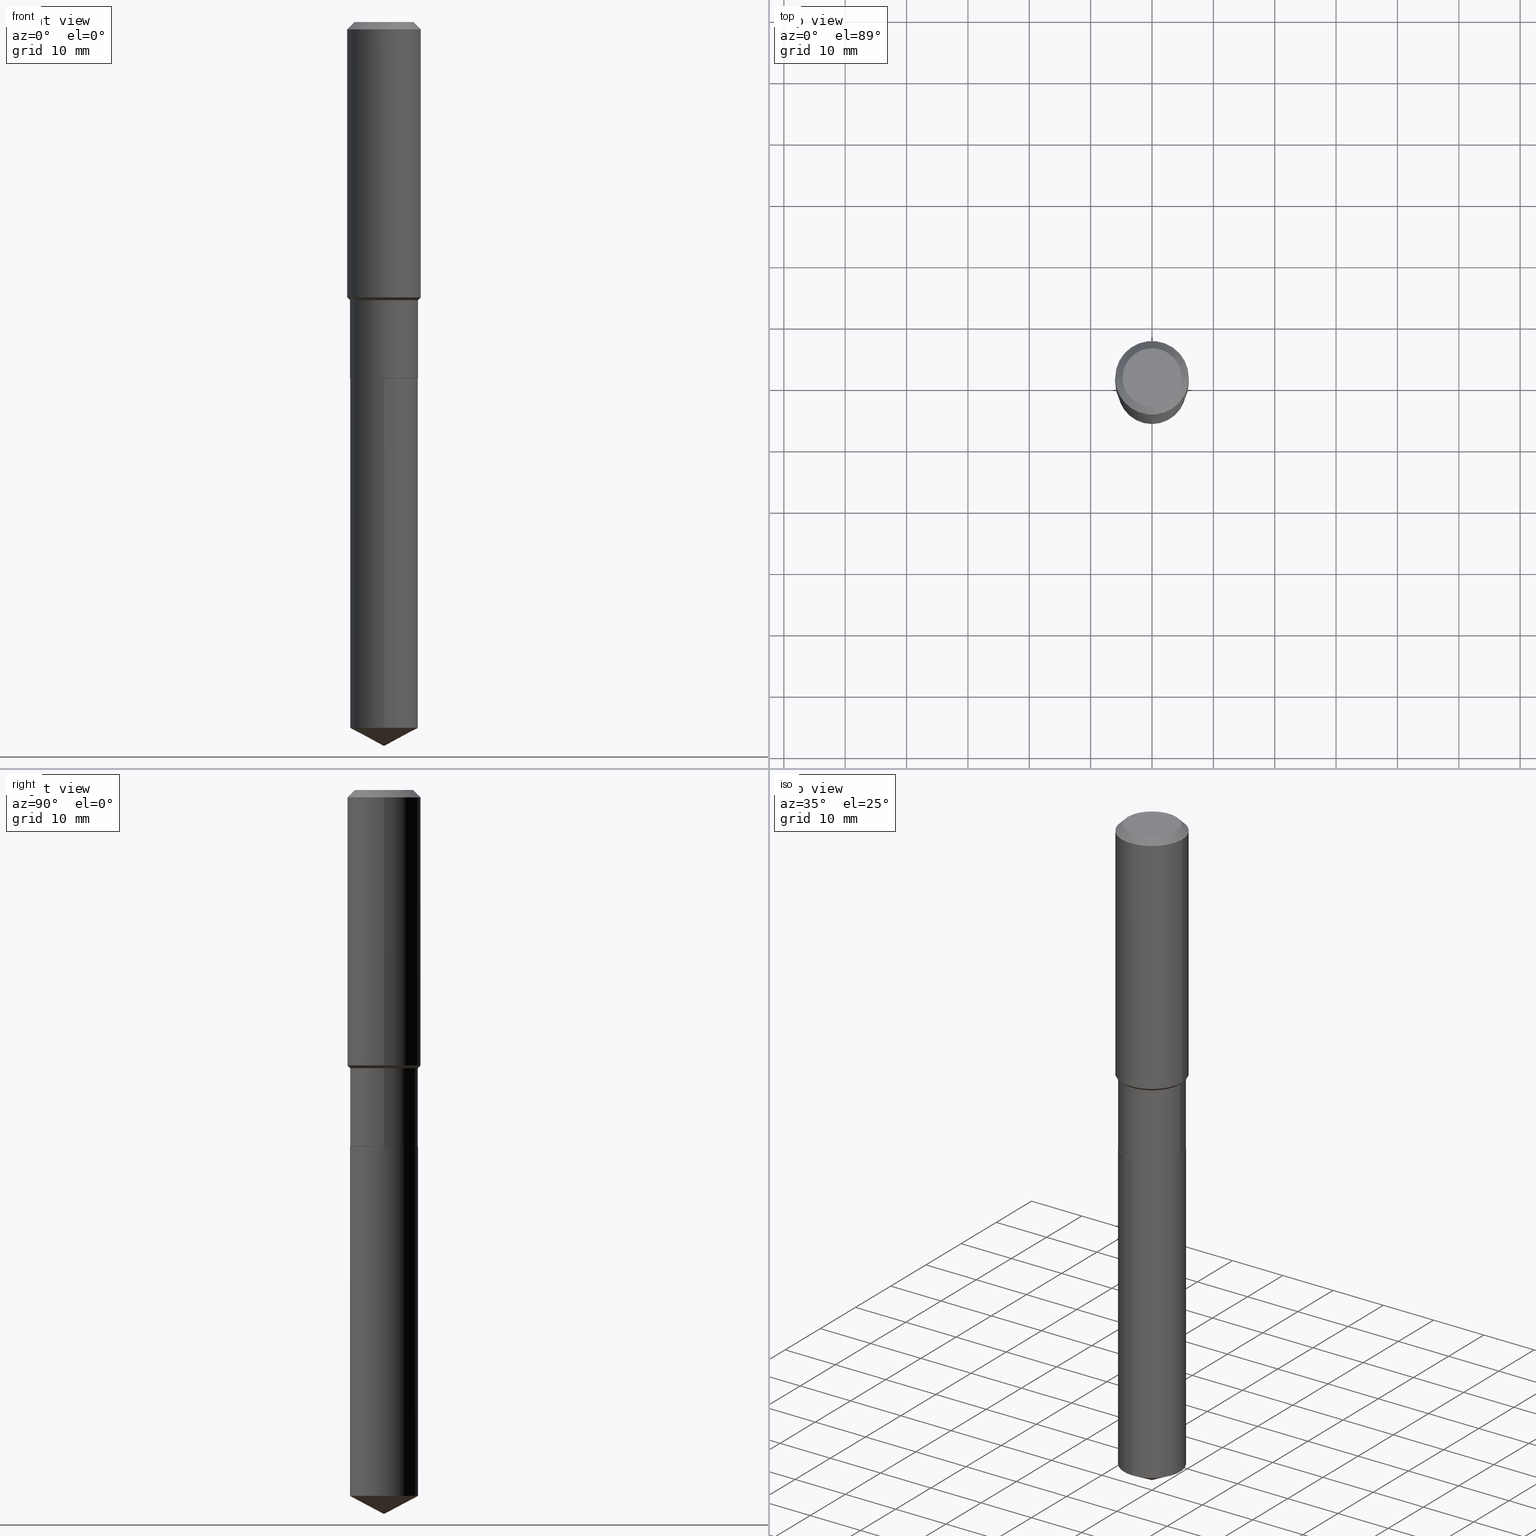
[diagram: canonical four-view strip — front | top / right | iso, engineering-drawing reading convention]
A machine part, canonical four-view strip (front | top / right | iso — engineering-drawing reading convention). The complete STEP part file that produces these views, byte-faithful:
ISO-10303-21;
HEADER;
FILE_DESCRIPTION (( 'STEP AP203' ),
    '1' );
FILE_NAME ('65081.STEP',
    '2024-04-24T20:31:33',
    ( '' ),
    ( '' ),
    'SwSTEP 2.0',
    'SolidWorks 2023',
    '' );
FILE_SCHEMA (( 'CONFIG_CONTROL_DESIGN' ));
ENDSEC;

DATA;
#1 = ORIENTED_EDGE ( 'NONE', *, *, #315, .F. ) ;
#2 = AXIS2_PLACEMENT_3D ( 'NONE', #12, #395, #17 ) ;
#3 = EDGE_CURVE ( 'NONE', #253, #256, #459, .T. ) ;
#4 = APPLICATION_PROTOCOL_DEFINITION ( 'international standard', 'config_control_design', 1994, #344 ) ;
#5 = ORIENTED_EDGE ( 'NONE', *, *, #213, .T. ) ;
#6 = DATE_AND_TIME ( #38, #136 ) ;
#7 = ORIENTED_EDGE ( 'NONE', *, *, #105, .T. ) ;
#8 = DATE_AND_TIME ( #347, #162 ) ;
#9 = DIRECTION ( 'NONE',  ( -2.445468806185136597E-29, 3.491481338843145583E-15, 1.000000000000000000 ) ) ;
#10 = FACE_OUTER_BOUND ( 'NONE', #139, .T. ) ;
#11 = DIRECTION ( 'NONE',  ( 1.000000000000000000, -6.982962677686264344E-15, 0.000000000000000000 ) ) ;
#12 = CARTESIAN_POINT ( 'NONE',  ( 5.593765347267879611E-29, -7.986414414469808493E-15, -2.287399999999998990 ) ) ;
#13 = EDGE_CURVE ( 'NONE', #88, #222, #233, .T. ) ;
#14 = CARTESIAN_POINT ( 'NONE',  ( 1.107686542487297643E-28, -1.581465108594102164E-14, -4.529521489181966842 ) ) ;
#15 = DIRECTION ( 'NONE',  ( 6.982962677686265922E-15, 1.000000000000000000, -3.491441792624415852E-15 ) ) ;
#16 = UNCERTAINTY_MEASURE_WITH_UNIT (LENGTH_MEASURE( 1.000000000000000082E-05 ), #306, 'distance_accuracy_value', 'NONE');
#17 = DIRECTION ( 'NONE',  ( -6.982962677686265922E-15, -1.000000000000000000, 3.750821043932626512E-15 ) ) ;
#18 = EDGE_CURVE ( 'NONE', #366, #88, #149, .T. ) ;
#19 = CARTESIAN_POINT ( 'NONE',  ( 1.155239464041865506E-30, -1.649375784469511859E-16, -0.04724000000000028177 ) ) ;
#20 = MANIFOLD_SOLID_BREP ( 'Body-Move/Copy2[2]', #77 ) ;
#21 = APPROVAL_DATE_TIME ( #285, #66 ) ;
#22 = CIRCLE ( 'NONE', #290, 0.2179999999999999993 ) ;
#23 = DIRECTION ( 'NONE',  ( 1.000000000000000000, -6.982962677686270655E-15, 0.000000000000000000 ) ) ;
#24 = ORIENTED_EDGE ( 'NONE', *, *, #13, .F. ) ;
#25 = COORDINATED_UNIVERSAL_TIME_OFFSET ( 5, 0, .BEHIND. ) ;
#26 = CARTESIAN_POINT ( 'NONE',  ( -0.2184999999999999443, -5.555596406047996630E-15, -1.784799999999999498 ) ) ;
#27 = ORIENTED_EDGE ( 'NONE', *, *, #385, .T. ) ;
#28 = DIRECTION ( 'NONE',  ( -2.445468806185136877E-29, 3.491481338843145188E-15, 1.000000000000000000 ) ) ;
#29 = ORIENTED_EDGE ( 'NONE', *, *, #385, .F. ) ;
#30 = CIRCLE ( 'NONE', #201, 0.2184999999999999443 ) ;
#31 = LOCAL_TIME ( 16, 31, 33.00000000000000000, #25 ) ;
#32 = DIRECTION ( 'NONE',  ( -2.445468806185136597E-29, 3.491481338843145583E-15, 1.000000000000000000 ) ) ;
#33 = ORIENTED_EDGE ( 'NONE', *, *, #322, .F. ) ;
#34 = ORIENTED_EDGE ( 'NONE', *, *, #94, .T. ) ;
#35 = DIRECTION ( 'NONE',  ( -1.000000000000000000, 6.982962677686266711E-15, 0.000000000000000000 ) ) ;
#36 = EDGE_LOOP ( 'NONE', ( #146, #67, #190, #40 ) ) ;
#37 = VECTOR ( 'NONE', #126, 39.37007874015748143 ) ;
#38 = CALENDAR_DATE ( 2024, 24, 4 ) ;
#39 =( GEOMETRIC_REPRESENTATION_CONTEXT ( 3 ) GLOBAL_UNCERTAINTY_ASSIGNED_CONTEXT ( ( #16 ) ) GLOBAL_UNIT_ASSIGNED_CONTEXT ( ( #306, #236, #386 ) ) REPRESENTATION_CONTEXT ( 'NONE', 'WORKASPACE' ) );
#40 = ORIENTED_EDGE ( 'NONE', *, *, #269, .F. ) ;
#41 = EDGE_CURVE ( 'NONE', #72, #297, #30, .T. ) ;
#42 = COORDINATED_UNIVERSAL_TIME_OFFSET ( 5, 0, .BEHIND. ) ;
#43 = ORIENTED_EDGE ( 'NONE', *, *, #18, .F. ) ;
#44 = PERSON_AND_ORGANIZATION ( #204, #336 ) ;
#45 = DIRECTION ( 'NONE',  ( -2.445468806185136877E-29, 3.491481338843145188E-15, 1.000000000000000000 ) ) ;
#46 = CIRCLE ( 'NONE', #86, 0.2184999999999999443 ) ;
#47 = CYLINDRICAL_SURFACE ( 'NONE', #160, 0.2184999999999999720 ) ;
#48 = VECTOR ( 'NONE', #145, 39.37007874015748143 ) ;
#49 = DIRECTION ( 'NONE',  ( -6.982962677686265922E-15, -1.000000000000000000, 2.500547362621751271E-15 ) ) ;
#50 = ORIENTED_EDGE ( 'NONE', *, *, #207, .F. ) ;
#51 = EDGE_CURVE ( 'NONE', #256, #297, #270, .T. ) ;
#52 = CARTESIAN_POINT ( 'NONE',  ( 1.136091639079615230E-28, -1.622037205203669386E-14, -4.645699999999999719 ) ) ;
#53 = CARTESIAN_POINT ( 'NONE',  ( -1.525777345074393133E-15, -0.2185000000000079934, -2.287399999999998546 ) ) ;
#54 = LOCAL_TIME ( 16, 31, 33.00000000000000000, #283 ) ;
#55 = DIRECTION ( 'NONE',  ( 6.273719981627763710E-15, 0.8829475928589293199, 0.4694715627858859208 ) ) ;
#56 = LINE ( 'NONE', #243, #467 ) ;
#57 = PERSON_AND_ORGANIZATION_ROLE ( 'creator' ) ;
#58 = DIRECTION ( 'NONE',  ( -1.000000000000000000, 6.982962677686265922E-15, -4.876176775795935793E-29 ) ) ;
#59 = EDGE_LOOP ( 'NONE', ( #342, #104, #34, #299 ) ) ;
#60 = AXIS2_PLACEMENT_3D ( 'NONE', #324, #403, #438 ) ;
#61 = AXIS2_PLACEMENT_3D ( 'NONE', #446, #328, #252 ) ;
#62 = FACE_OUTER_BOUND ( 'NONE', #242, .T. ) ;
#63 = EDGE_LOOP ( 'NONE', ( #99, #27, #320, #141 ) ) ;
#64 = APPROVAL ( #350, 'UNSPECIFIED' ) ;
#65 = FACE_OUTER_BOUND ( 'NONE', #449, .T. ) ;
#66 = APPROVAL ( #251, 'UNSPECIFIED' ) ;
#67 = ORIENTED_EDGE ( 'NONE', *, *, #51, .T. ) ;
#68 = CARTESIAN_POINT ( 'NONE',  ( 5.593765347267879611E-29, -7.986414414469808493E-15, -2.287399999999998990 ) ) ;
#69 = VERTEX_POINT ( 'NONE', #382 ) ;
#70 = CIRCLE ( 'NONE', #353, 0.2362000000000002153 ) ;
#71 = CARTESIAN_POINT ( 'NONE',  ( 5.593765347267879611E-29, -7.986414414469808493E-15, -2.287399999999998990 ) ) ;
#72 = VERTEX_POINT ( 'NONE', #85 ) ;
#73 = CARTESIAN_POINT ( 'NONE',  ( -0.2361999999999999933, -1.489065184292978124E-15, -0.04724000000000028177 ) ) ;
#74 = EDGE_LOOP ( 'NONE', ( #184, #84, #218, #225 ) ) ;
#75 = PERSON_AND_ORGANIZATION ( #204, #336 ) ;
#76 = CARTESIAN_POINT ( 'NONE',  ( 0.000000000000000000, 0.000000000000000000, 0.000000000000000000 ) ) ;
#77 = CLOSED_SHELL ( 'NONE', ( #164, #129, #245, #171, #282, #111, #81, #89, #477, #349, #393, #388 ) ) ;
#78 = CARTESIAN_POINT ( 'NONE',  ( 0.2361999999999999933, -1.814313362916447440E-15, -0.04724000000000028177 ) ) ;
#79 = CIRCLE ( 'NONE', #227, 0.2361999999999999933 ) ;
#80 = ORIENTED_EDGE ( 'NONE', *, *, #259, .F. ) ;
#81 = ADVANCED_FACE ( 'NONE', ( #351 ), #274, .T. ) ;
#82 = DIRECTION ( 'NONE',  ( 0.7071067811865453523, -7.319954787623248157E-15, -0.7071067811865496822 ) ) ;
#83 = CC_DESIGN_PERSON_AND_ORGANIZATION_ASSIGNMENT ( #102, #287, ( #468 ) ) ;
#84 = ORIENTED_EDGE ( 'NONE', *, *, #311, .T. ) ;
#85 = CARTESIAN_POINT ( 'NONE',  ( 0.2184999999999999443, -7.757373238641693025E-15, -1.784799999999999498 ) ) ;
#86 = AXIS2_PLACEMENT_3D ( 'NONE', #309, #426, #124 ) ;
#87 = DIRECTION ( 'NONE',  ( 1.000000000000000000, -6.982962677686270655E-15, 0.000000000000000000 ) ) ;
#88 = VERTEX_POINT ( 'NONE', #192 ) ;
#89 = ADVANCED_FACE ( 'NONE', ( #10 ), #423, .T. ) ;
#90 = DIRECTION ( 'NONE',  ( -2.445496421162079859E-29, 3.491441792624415852E-15, 1.000000000000000000 ) ) ;
#91 = APPROVAL_DATE_TIME ( #147, #64 ) ;
#92 = FACE_OUTER_BOUND ( 'NONE', #114, .T. ) ;
#93 = DATE_AND_TIME ( #293, #31 ) ;
#94 = EDGE_CURVE ( 'NONE', #453, #447, #313, .T. ) ;
#95 = CARTESIAN_POINT ( 'NONE',  ( -1.525777345074393133E-15, -0.2185000000000079934, -2.287399999999998546 ) ) ;
#96 = VECTOR ( 'NONE', #45, 39.37007874015748143 ) ;
#97 = APPROVAL_PERSON_ORGANIZATION ( #173, #66, #214 ) ;
#98 = DIRECTION ( 'NONE',  ( -6.982962677686265922E-15, -1.000000000000000000, 3.750821043932626512E-15 ) ) ;
#99 = ORIENTED_EDGE ( 'NONE', *, *, #51, .F. ) ;
#100 = DIRECTION ( 'NONE',  ( 1.000000000000000000, -6.982962677686270655E-15, 0.000000000000000000 ) ) ;
#101 = VERTEX_POINT ( 'NONE', #276 ) ;
#102 = PERSON_AND_ORGANIZATION ( #204, #336 ) ;
#103 = FACE_OUTER_BOUND ( 'NONE', #362, .T. ) ;
#104 = ORIENTED_EDGE ( 'NONE', *, *, #154, .F. ) ;
#105 = EDGE_CURVE ( 'NONE', #297, #72, #46, .T. ) ;
#106 = VECTOR ( 'NONE', #448, 39.37007874015748143 ) ;
#107 = LINE ( 'NONE', #142, #48 ) ;
#108 = EDGE_LOOP ( 'NONE', ( #258, #148, #238, #29 ) ) ;
#109 = CARTESIAN_POINT ( 'NONE',  ( -0.2184999999999999443, -4.679060015931425373E-15, -1.784799999999999498 ) ) ;
#110 = VERTEX_POINT ( 'NONE', #432 ) ;
#111 = ADVANCED_FACE ( 'NONE', ( #391 ), #47, .T. ) ;
#112 = EDGE_CURVE ( 'NONE', #69, #256, #352, .T. ) ;
#113 = DIRECTION ( 'NONE',  ( 1.000000000000000000, -6.982962677686264344E-15, 0.000000000000000000 ) ) ;
#114 = EDGE_LOOP ( 'NONE', ( #229, #455, #337, #396 ) ) ;
#115 = VECTOR ( 'NONE', #183, 39.37007874015748143 ) ;
#116 = FACE_OUTER_BOUND ( 'NONE', #59, .T. ) ;
#117 = ORIENTED_EDGE ( 'NONE', *, *, #177, .F. ) ;
#118 = APPROVAL_ROLE ( '' ) ;
#119 = DIRECTION ( 'NONE',  ( 1.000000000000000000, -6.982962677686265922E-15, 0.000000000000000000 ) ) ;
#120 = DIRECTION ( 'NONE',  ( 1.000000000000000000, -6.982962677686266711E-15, 4.876176775795935793E-29 ) ) ;
#121 = EDGE_CURVE ( 'NONE', #230, #69, #472, .T. ) ;
#122 = DIRECTION ( 'NONE',  ( -2.445468806185136597E-29, 3.491481338843145583E-15, 1.000000000000000000 ) ) ;
#123 = CC_DESIGN_APPROVAL ( #64, ( #332 ) ) ;
#124 = DIRECTION ( 'NONE',  ( 1.000000000000000000, -6.982962677686265922E-15, 0.000000000000000000 ) ) ;
#125 = CARTESIAN_POINT ( 'NONE',  ( -0.2361999999999999933, 1.484438206022545019E-15, -0.04724000000000028177 ) ) ;
#126 = DIRECTION ( 'NONE',  ( -2.445496421162079579E-29, 3.491441792624415852E-15, 1.000000000000000000 ) ) ;
#127 = AXIS2_PLACEMENT_3D ( 'NONE', #310, #354, #11 ) ;
#128 = FACE_OUTER_BOUND ( 'NONE', #329, .T. ) ;
#129 = ADVANCED_FACE ( 'NONE', ( #92 ), #374, .T. ) ;
#130 = CARTESIAN_POINT ( 'NONE',  ( 0.000000000000000000, 0.000000000000000000, 0.000000000000000000 ) ) ;
#131 = FACE_OUTER_BOUND ( 'NONE', #466, .T. ) ;
#132 = ADVANCED_FACE ( 'NONE', ( #128 ), #434, .T. ) ;
#133 = LINE ( 'NONE', #444, #193 ) ;
#134 = AXIS2_PLACEMENT_3D ( 'NONE', #166, #281, #247 ) ;
#135 = ORIENTED_EDGE ( 'NONE', *, *, #200, .F. ) ;
#136 = LOCAL_TIME ( 16, 31, 33.00000000000000000, #465 ) ;
#137 = CARTESIAN_POINT ( 'NONE',  ( -1.525777345074338504E-15, -0.2185000000000158482, -4.529521489181966842 ) ) ;
#138 = DIRECTION ( 'NONE',  ( -6.982962677686265922E-15, -1.000000000000000000, 3.750821043932626512E-15 ) ) ;
#139 = EDGE_LOOP ( 'NONE', ( #195, #376, #5, #346 ) ) ;
#140 = DIRECTION ( 'NONE',  ( -2.445468806185136597E-29, 3.491481338843145583E-15, 1.000000000000000000 ) ) ;
#141 = ORIENTED_EDGE ( 'NONE', *, *, #105, .F. ) ;
#142 = CARTESIAN_POINT ( 'NONE',  ( 0.2184999999999999443, -7.757373238641693025E-15, -1.784799999999999498 ) ) ;
#143 = VERTEX_POINT ( 'NONE', #249 ) ;
#144 = ADVANCED_FACE ( 'NONE', ( #172 ), #165, .F. ) ;
#145 = DIRECTION ( 'NONE',  ( 0.7071067811865489050, -2.468850131082271655E-15, 0.7071067811865461294 ) ) ;
#146 = ORIENTED_EDGE ( 'NONE', *, *, #112, .T. ) ;
#147 = DATE_AND_TIME ( #389, #54 ) ;
#148 = ORIENTED_EDGE ( 'NONE', *, *, #322, .T. ) ;
#149 = CIRCLE ( 'NONE', #206, 0.2184999999999999998 ) ;
#150 = DIRECTION ( 'NONE',  ( 0.000000000000000000, 0.000000000000000000, 1.000000000000000000 ) ) ;
#151 = CARTESIAN_POINT ( 'NONE',  ( -0.2179999999999999993, -6.437431250512790290E-15, -2.287399999999998990 ) ) ;
#152 = DATE_TIME_ROLE ( 'creation_date' ) ;
#153 = ORIENTED_EDGE ( 'NONE', *, *, #406, .T. ) ;
#154 = EDGE_CURVE ( 'NONE', #453, #237, #392, .T. ) ;
#155 = CC_DESIGN_DATE_AND_TIME_ASSIGNMENT ( #93, #445, ( #375 ) ) ;
#156 = APPROVAL_DATE_TIME ( #8, #404 ) ;
#157 = DIRECTION ( 'NONE',  ( -0.7071067811865453523, 2.468850131082234184E-15, -0.7071067811865496822 ) ) ;
#158 = PRODUCT_DEFINITION_SHAPE ( 'NONE', 'NONE',  #332 ) ;
#159 = APPLICATION_CONTEXT ( 'configuration controlled 3d designs of mechanical parts and assemblies' ) ;
#160 = AXIS2_PLACEMENT_3D ( 'NONE', #202, #464, #120 ) ;
#161 = PERSON_AND_ORGANIZATION_ROLE ( 'design_owner' ) ;
#162 = LOCAL_TIME ( 16, 31, 33.00000000000000000, #42 ) ;
#163 = DIRECTION ( 'NONE',  ( 1.000000000000000000, -6.982962677686266711E-15, 4.876176775795935793E-29 ) ) ;
#164 = ADVANCED_FACE ( 'NONE', ( #357 ), #226, .T. ) ;
#165 = PLANE ( 'NONE',  #265 ) ;
#166 = CARTESIAN_POINT ( 'NONE',  ( -9.427742298522546243E-47, 1.346031739168365344E-32, 3.855188123715862256E-18 ) ) ;
#167 = AXIS2_PLACEMENT_3D ( 'NONE', #314, #436, #241 ) ;
#168 = DIRECTION ( 'NONE',  ( 2.445496421162079579E-29, -3.491441792624415852E-15, -1.000000000000000000 ) ) ;
#169 = AXIS2_PLACEMENT_3D ( 'NONE', #19, #223, #326 ) ;
#170 = DIRECTION ( 'NONE',  ( -2.445468806185136597E-29, 3.491481338843145583E-15, 1.000000000000000000 ) ) ;
#171 = ADVANCED_FACE ( 'NONE', ( #131 ), #266, .T. ) ;
#172 = FACE_OUTER_BOUND ( 'NONE', #264, .T. ) ;
#173 = PERSON_AND_ORGANIZATION ( #204, #336 ) ;
#174 = CARTESIAN_POINT ( 'NONE',  ( 5.592542612864786810E-29, -7.984668673800386201E-15, -2.286899999999999267 ) ) ;
#175 = CC_DESIGN_SECURITY_CLASSIFICATION ( #375, ( #468 ) ) ;
#176 = COORDINATED_UNIVERSAL_TIME_OFFSET ( 5, 0, .BEHIND. ) ;
#177 = EDGE_CURVE ( 'NONE', #262, #222, #427, .T. ) ;
#178 = DIRECTION ( 'NONE',  ( -2.445468806185136597E-29, 3.491481338843145583E-15, 1.000000000000000000 ) ) ;
#179 = ORIENTED_EDGE ( 'NONE', *, *, #406, .F. ) ;
#180 = CARTESIAN_POINT ( 'NONE',  ( -0.2362000000000001043, 1.678301941865357380E-15, -1.161852468318209317E-29 ) ) ;
#181 = CC_DESIGN_PERSON_AND_ORGANIZATION_ASSIGNMENT ( #330, #398, ( #375 ) ) ;
#182 = ORIENTED_EDGE ( 'NONE', *, *, #250, .F. ) ;
#183 = DIRECTION ( 'NONE',  ( -2.445468806185136877E-29, 3.491481338843145188E-15, 1.000000000000000000 ) ) ;
#184 = ORIENTED_EDGE ( 'NONE', *, *, #259, .T. ) ;
#185 = VECTOR ( 'NONE', #157, 39.37007874015748143 ) ;
#186 = AXIS2_PLACEMENT_3D ( 'NONE', #257, #291, #370 ) ;
#187 = LINE ( 'NONE', #334, #115 ) ;
#188 = ORIENTED_EDGE ( 'NONE', *, *, #232, .T. ) ;
#189 = MANIFOLD_SOLID_BREP ( 'Body-Move/Copy2[1]', #246 ) ;
#190 = ORIENTED_EDGE ( 'NONE', *, *, #41, .F. ) ;
#191 = CARTESIAN_POINT ( 'NONE',  ( -0.1889600000000000168, 1.401969416799070942E-15, 3.855188123706346622E-18 ) ) ;
#192 = CARTESIAN_POINT ( 'NONE',  ( 1.552535877635929740E-15, 0.2184999999999842346, -4.529521489181967731 ) ) ;
#193 = VECTOR ( 'NONE', #397, 39.37007874015748143 ) ;
#194 = CARTESIAN_POINT ( 'NONE',  ( 1.155239464041865506E-30, -1.649375784469511859E-16, -0.04724000000000028177 ) ) ;
#195 = ORIENTED_EDGE ( 'NONE', *, *, #311, .F. ) ;
#196 = PERSON_AND_ORGANIZATION ( #204, #336 ) ;
#197 = DIRECTION ( 'NONE',  ( -2.445496421162079859E-29, 3.491441792624415852E-15, 1.000000000000000000 ) ) ;
#198 = PERSON_AND_ORGANIZATION ( #204, #336 ) ;
#199 = CARTESIAN_POINT ( 'NONE',  ( 4.364672725279230202E-29, -6.231595893567244475E-15, -1.784799999999999498 ) ) ;
#200 = EDGE_CURVE ( 'NONE', #110, #88, #56, .T. ) ;
#201 = AXIS2_PLACEMENT_3D ( 'NONE', #307, #422, #119 ) ;
#202 = CARTESIAN_POINT ( 'NONE',  ( 0.000000000000000000, 0.000000000000000000, 0.000000000000000000 ) ) ;
#203 = DIRECTION ( 'NONE',  ( 2.445468806185136597E-29, -3.491481338843145583E-15, -1.000000000000000000 ) ) ;
#204 = PERSON ( 'UNSPECIFIED', 'UNSPECIFIED', 'UNSPECIFIED', ('UNSPECIFIED'), ('UNSPECIFIED'), ('UNSPECIFIED') ) ;
#205 = LINE ( 'NONE', #52, #216 ) ;
#206 = AXIS2_PLACEMENT_3D ( 'NONE', #268, #197, #348 ) ;
#207 = EDGE_CURVE ( 'NONE', #88, #366, #383, .T. ) ;
#208 = CARTESIAN_POINT ( 'NONE',  ( -0.2179999999999999993, -6.434782023338679089E-15, -2.287399999999998990 ) ) ;
#209 = CONICAL_SURFACE ( 'NONE', #318, 74.04434902938349694, 1.082104136236486269 ) ;
#210 = CC_DESIGN_PERSON_AND_ORGANIZATION_ASSIGNMENT ( #44, #57, ( #468 ) ) ;
#211 = DIRECTION ( 'NONE',  ( 0.7071067811866199593, -2.468850131083015945E-15, 0.7071067811864750752 ) ) ;
#212 = DIRECTION ( 'NONE',  ( -2.445496421162079859E-29, 3.491441792624415852E-15, 1.000000000000000000 ) ) ;
#213 = EDGE_CURVE ( 'NONE', #143, #470, #133, .T. ) ;
#214 = APPROVAL_ROLE ( '' ) ;
#215 = PLANE ( 'NONE',  #61 ) ;
#216 = VECTOR ( 'NONE', #478, 39.37007874015748854 ) ;
#217 = CONICAL_SURFACE ( 'NONE', #186, 0.2179999999999999993, 0.7853981633975507526 ) ;
#218 = ORIENTED_EDGE ( 'NONE', *, *, #272, .F. ) ;
#219 = DIRECTION ( 'NONE',  ( -2.445496421162079859E-29, 3.491441792624415852E-15, 1.000000000000000000 ) ) ;
#220 = EDGE_LOOP ( 'NONE', ( #1, #33 ) ) ;
#221 = DIRECTION ( 'NONE',  ( -2.445468806185136597E-29, 3.491481338843145583E-15, 1.000000000000000000 ) ) ;
#222 = VERTEX_POINT ( 'NONE', #476 ) ;
#223 = DIRECTION ( 'NONE',  ( -2.445468806185136597E-29, 3.491481338843145583E-15, 1.000000000000000000 ) ) ;
#224 = EDGE_CURVE ( 'NONE', #110, #366, #205, .T. ) ;
#225 = ORIENTED_EDGE ( 'NONE', *, *, #213, .F. ) ;
#226 = CONICAL_SURFACE ( 'NONE', #335, 0.2179999999999999993, 0.7853981633975507526 ) ;
#227 = AXIS2_PLACEMENT_3D ( 'NONE', #194, #122, #458 ) ;
#228 = CARTESIAN_POINT ( 'NONE',  ( -8.491840710262998486E-28, 1.212380566982838890E-13, 34.72437874015748349 ) ) ;
#229 = ORIENTED_EDGE ( 'NONE', *, *, #232, .F. ) ;
#230 = VERTEX_POINT ( 'NONE', #286 ) ;
#231 = ADVANCED_BREP_SHAPE_REPRESENTATION ( '65081', ( #189, #20, #275 ), #39 ) ;
#232 = EDGE_CURVE ( 'NONE', #237, #453, #279, .T. ) ;
#233 = LINE ( 'NONE', #239, #288 ) ;
#234 = AXIS2_PLACEMENT_3D ( 'NONE', #278, #170, #439 ) ;
#235 = AXIS2_PLACEMENT_3D ( 'NONE', #71, #221, #100 ) ;
#236 =( NAMED_UNIT ( * ) PLANE_ANGLE_UNIT ( ) SI_UNIT ( $, .RADIAN. ) );
#237 = VERTEX_POINT ( 'NONE', #363 ) ;
#238 = ORIENTED_EDGE ( 'NONE', *, *, #121, .T. ) ;
#239 = CARTESIAN_POINT ( 'NONE',  ( 1.552535877635874716E-15, 0.2184999999999920062, -2.287399999999999878 ) ) ;
#240 = AXIS2_PLACEMENT_3D ( 'NONE', #289, #90, #98 ) ;
#241 = DIRECTION ( 'NONE',  ( 1.000000000000000000, -6.982962677686265922E-15, 0.000000000000000000 ) ) ;
#242 = EDGE_LOOP ( 'NONE', ( #369, #430, #43 ) ) ;
#243 = CARTESIAN_POINT ( 'NONE',  ( 1.136104383158392863E-28, -1.622019113599524939E-14, -4.645699999999999719 ) ) ;
#244 = CYLINDRICAL_SURFACE ( 'NONE', #317, 0.2362000000000001043 ) ;
#245 = ADVANCED_FACE ( 'NONE', ( #361 ), #244, .T. ) ;
#246 = CLOSED_SHELL ( 'NONE', ( #132, #367, #409, #402, #144 ) ) ;
#247 = DIRECTION ( 'NONE',  ( 1.000000000000000000, -6.982962677686266711E-15, 4.876185090822587894E-29 ) ) ;
#248 = APPROVAL_PERSON_ORGANIZATION ( #308, #404, #425 ) ;
#249 = CARTESIAN_POINT ( 'NONE',  ( 0.2362000000000002153, -7.819172458339218196E-15, -1.767099999999999227 ) ) ;
#250 = EDGE_CURVE ( 'NONE', #366, #262, #471, .T. ) ;
#251 = APPROVAL_STATUS ( 'not_yet_approved' ) ;
#252 = DIRECTION ( 'NONE',  ( 1.000000000000000000, -6.982962677686265922E-15, 4.876176775795935793E-29 ) ) ;
#253 = VERTEX_POINT ( 'NONE', #208 ) ;
#254 = CARTESIAN_POINT ( 'NONE',  ( -4.713871149261273121E-47, 6.730158695841826722E-33, 1.927594061857931128E-18 ) ) ;
#255 = AXIS2_PLACEMENT_3D ( 'NONE', #463, #421, #35 ) ;
#256 = VERTEX_POINT ( 'NONE', #359 ) ;
#257 = CARTESIAN_POINT ( 'NONE',  ( 5.593765347267879611E-29, -7.986414414469808493E-15, -2.287399999999998990 ) ) ;
#258 = ORIENTED_EDGE ( 'NONE', *, *, #3, .F. ) ;
#259 = EDGE_CURVE ( 'NONE', #143, #101, #450, .T. ) ;
#260 = DIRECTION ( 'NONE',  ( -2.445496421162079859E-29, 3.491441792624415852E-15, 1.000000000000000000 ) ) ;
#261 = CC_DESIGN_PERSON_AND_ORGANIZATION_ASSIGNMENT ( #75, #381, ( #332 ) ) ;
#262 = VERTEX_POINT ( 'NONE', #95 ) ;
#263 = CARTESIAN_POINT ( 'NONE',  ( 0.000000000000000000, 0.000000000000000000, 0.000000000000000000 ) ) ;
#264 = EDGE_LOOP ( 'NONE', ( #371, #339 ) ) ;
#265 = AXIS2_PLACEMENT_3D ( 'NONE', #321, #168, #15 ) ;
#266 = CONICAL_SURFACE ( 'NONE', #167, 0.2184999999999999443, 0.7853981633974502774 ) ;
#267 = CONICAL_SURFACE ( 'NONE', #255, 0.2361999999999999933, 0.7853981633974452814 ) ;
#268 = CARTESIAN_POINT ( 'NONE',  ( 1.107686542487297643E-28, -1.581465108594102164E-14, -4.529521489181966842 ) ) ;
#269 = EDGE_CURVE ( 'NONE', #69, #72, #187, .T. ) ;
#270 = LINE ( 'NONE', #390, #96 ) ;
#271 = APPROVAL_STATUS ( 'not_yet_approved' ) ;
#272 = EDGE_CURVE ( 'NONE', #470, #447, #305, .T. ) ;
#273 = DIRECTION ( 'NONE',  ( -0.7071067811866199593, 7.493145998870616062E-15, 0.7071067811864750752 ) ) ;
#274 = CONICAL_SURFACE ( 'NONE', #400, 0.2184999999999999443, 0.7853981633974502774 ) ;
#275 = AXIS2_PLACEMENT_3D ( 'NONE', #437, #150, #475 ) ;
#276 = CARTESIAN_POINT ( 'NONE',  ( -0.2362000000000002153, -4.491494732004361332E-15, -1.767099999999999227 ) ) ;
#277 = DIRECTION ( 'NONE',  ( -2.445496421162079579E-29, 3.491441792624415852E-15, 1.000000000000000000 ) ) ;
#278 = CARTESIAN_POINT ( 'NONE',  ( 4.321387927409752990E-29, -6.169796673869720093E-15, -1.767099999999999227 ) ) ;
#279 = CIRCLE ( 'NONE', #60, 0.1889600000000000168 ) ;
#280 = AXIS2_PLACEMENT_3D ( 'NONE', #174, #178, #113 ) ;
#281 = DIRECTION ( 'NONE',  ( -2.445468806185136597E-29, 3.491481338843145583E-15, 1.000000000000000000 ) ) ;
#282 = ADVANCED_FACE ( 'NONE', ( #338 ), #454, .T. ) ;
#283 = COORDINATED_UNIVERSAL_TIME_OFFSET ( 5, 0, .BEHIND. ) ;
#284 = DIRECTION ( 'NONE',  ( -2.445468806185136597E-29, 3.491481338843145583E-15, 1.000000000000000000 ) ) ;
#285 = DATE_AND_TIME ( #484, #443 ) ;
#286 = CARTESIAN_POINT ( 'NONE',  ( 0.2179999999999999993, -9.508700278205414825E-15, -2.287399999999998990 ) ) ;
#287 = PERSON_AND_ORGANIZATION_ROLE ( 'design_supplier' ) ;
#288 = VECTOR ( 'NONE', #277, 39.37007874015748143 ) ;
#289 = CARTESIAN_POINT ( 'NONE',  ( 5.593765347267879611E-29, -7.986414414469808493E-15, -2.287399999999998990 ) ) ;
#290 = AXIS2_PLACEMENT_3D ( 'NONE', #372, #32, #23 ) ;
#291 = DIRECTION ( 'NONE',  ( -2.445468806185136597E-29, 3.491481338843145583E-15, 1.000000000000000000 ) ) ;
#292 = PRODUCT_RELATED_PRODUCT_CATEGORY ( 'detail', '', ( #433 ) ) ;
#293 = CALENDAR_DATE ( 2024, 24, 4 ) ;
#294 = LINE ( 'NONE', #109, #106 ) ;
#295 = ORIENTED_EDGE ( 'NONE', *, *, #315, .T. ) ;
#296 = DIRECTION ( 'NONE',  ( -6.982962677686265922E-15, -1.000000000000000000, 3.750821043932626512E-15 ) ) ;
#297 = VERTEX_POINT ( 'NONE', #26 ) ;
#298 = DIRECTION ( 'NONE',  ( -2.445468806185136597E-29, 3.491481338843145583E-15, 1.000000000000000000 ) ) ;
#299 = ORIENTED_EDGE ( 'NONE', *, *, #469, .T. ) ;
#300 = FACE_OUTER_BOUND ( 'NONE', #108, .T. ) ;
#301 = EDGE_LOOP ( 'NONE', ( #179, #7, #420, #408 ) ) ;
#302 = EDGE_CURVE ( 'NONE', #222, #262, #410, .T. ) ;
#303 = DIRECTION ( 'NONE',  ( 1.000000000000000000, -6.982962677686265922E-15, 0.000000000000000000 ) ) ;
#304 = AXIS2_PLACEMENT_3D ( 'NONE', #14, #212, #49 ) ;
#305 = CIRCLE ( 'NONE', #169, 0.2361999999999999933 ) ;
#306 =( CONVERSION_BASED_UNIT ( 'INCH', #341 ) LENGTH_UNIT ( ) NAMED_UNIT ( #356 ) );
#307 = CARTESIAN_POINT ( 'NONE',  ( 4.364672725279230202E-29, -6.231595893567244475E-15, -1.784799999999999498 ) ) ;
#308 = PERSON_AND_ORGANIZATION ( #204, #336 ) ;
#309 = CARTESIAN_POINT ( 'NONE',  ( 4.364672725279230202E-29, -6.231595893567244475E-15, -1.784799999999999498 ) ) ;
#310 = CARTESIAN_POINT ( 'NONE',  ( 5.592542612864786810E-29, -7.984668673800386201E-15, -2.286899999999999267 ) ) ;
#311 = EDGE_CURVE ( 'NONE', #101, #447, #418, .T. ) ;
#312 = APPROVAL_PERSON_ORGANIZATION ( #198, #64, #118 ) ;
#313 = LINE ( 'NONE', #125, #185 ) ;
#314 = CARTESIAN_POINT ( 'NONE',  ( 4.364672725279230202E-29, -6.231595893567244475E-15, -1.784799999999999498 ) ) ;
#315 = EDGE_CURVE ( 'NONE', #230, #253, #428, .T. ) ;
#316 = CARTESIAN_POINT ( 'NONE',  ( 5.593765347267879611E-29, -7.986414414469808493E-15, -2.287399999999998990 ) ) ;
#317 = AXIS2_PLACEMENT_3D ( 'NONE', #130, #284, #399 ) ;
#318 = AXIS2_PLACEMENT_3D ( 'NONE', #228, #489, #487 ) ;
#319 = CARTESIAN_POINT ( 'NONE',  ( 1.155239464041865506E-30, -1.649375784469511859E-16, -0.04724000000000028177 ) ) ;
#320 = ORIENTED_EDGE ( 'NONE', *, *, #269, .T. ) ;
#321 = CARTESIAN_POINT ( 'NONE',  ( 5.593765347267879611E-29, -7.986414414469808493E-15, -2.287399999999998990 ) ) ;
#322 = EDGE_CURVE ( 'NONE', #253, #230, #22, .T. ) ;
#323 = DESIGN_CONTEXT ( 'detailed design', #159, 'design' ) ;
#324 = CARTESIAN_POINT ( 'NONE',  ( -9.427742298522546243E-47, 1.346031739168365344E-32, 3.855188123715862256E-18 ) ) ;
#325 = AXIS2_PLACEMENT_3D ( 'NONE', #331, #260, #452 ) ;
#326 = DIRECTION ( 'NONE',  ( 1.000000000000000000, -6.982962677686266711E-15, 0.000000000000000000 ) ) ;
#327 = CC_DESIGN_APPROVAL ( #404, ( #468 ) ) ;
#328 = DIRECTION ( 'NONE',  ( -2.438088387897960049E-29, 3.491481338843145188E-15, 1.000000000000000000 ) ) ;
#329 = EDGE_LOOP ( 'NONE', ( #415, #440, #117, #182 ) ) ;
#330 = PERSON_AND_ORGANIZATION ( #204, #336 ) ;
#331 = CARTESIAN_POINT ( 'NONE',  ( -8.491840710262998486E-28, 1.212380566982838890E-13, 34.72437874015748349 ) ) ;
#332 = PRODUCT_DEFINITION ( 'UNKNOWN', '', #468, #323 ) ;
#333 = ORIENTED_EDGE ( 'NONE', *, *, #250, .T. ) ;
#334 = CARTESIAN_POINT ( 'NONE',  ( 0.2184999999999999720, -1.525777345074449142E-15, 1.065444625511411819E-29 ) ) ;
#335 = AXIS2_PLACEMENT_3D ( 'NONE', #316, #479, #87 ) ;
#336 = ORGANIZATION ( 'UNSPECIFIED', 'UNSPECIFIED', '' ) ;
#337 = ORIENTED_EDGE ( 'NONE', *, *, #272, .T. ) ;
#338 = FACE_OUTER_BOUND ( 'NONE', #36, .T. ) ;
#339 = ORIENTED_EDGE ( 'NONE', *, *, #302, .T. ) ;
#340 = ORIENTED_EDGE ( 'NONE', *, *, #121, .F. ) ;
#341 = LENGTH_MEASURE_WITH_UNIT ( LENGTH_MEASURE( 0.02539999999999999897 ), #377 );
#342 = ORIENTED_EDGE ( 'NONE', *, *, #462, .F. ) ;
#343 = VECTOR ( 'NONE', #28, 39.37007874015748143 ) ;
#344 = APPLICATION_CONTEXT ( 'configuration controlled 3d designs of mechanical parts and assemblies' ) ;
#345 = CARTESIAN_POINT ( 'NONE',  ( 0.2361999999999999933, -1.785387205520586782E-15, -0.04724000000000028177 ) ) ;
#346 = ORIENTED_EDGE ( 'NONE', *, *, #469, .F. ) ;
#347 = CALENDAR_DATE ( 2024, 24, 4 ) ;
#348 = DIRECTION ( 'NONE',  ( -6.982962677686265922E-15, -1.000000000000000000, 2.500547362621751271E-15 ) ) ;
#349 = ADVANCED_FACE ( 'NONE', ( #65 ), #481, .F. ) ;
#350 = APPROVAL_STATUS ( 'not_yet_approved' ) ;
#351 = FACE_OUTER_BOUND ( 'NONE', #301, .T. ) ;
#352 = CIRCLE ( 'NONE', #127, 0.2184999999999999998 ) ;
#353 = AXIS2_PLACEMENT_3D ( 'NONE', #485, #140, #414 ) ;
#354 = DIRECTION ( 'NONE',  ( -2.445468806185136597E-29, 3.491481338843145583E-15, 1.000000000000000000 ) ) ;
#355 = DIRECTION ( 'NONE',  ( -1.000000000000000000, 6.982962677686266711E-15, 0.000000000000000000 ) ) ;
#356 = DIMENSIONAL_EXPONENTS ( 1.000000000000000000, 0.000000000000000000, 0.000000000000000000, 0.000000000000000000, 0.000000000000000000, 0.000000000000000000, 0.000000000000000000 ) ;
#357 = FACE_OUTER_BOUND ( 'NONE', #483, .T. ) ;
#358 = VECTOR ( 'NONE', #211, 39.37007874015748143 ) ;
#359 = CARTESIAN_POINT ( 'NONE',  ( -0.2184999999999999998, -5.555596406047996630E-15, -2.286899999999999267 ) ) ;
#360 = SHAPE_DEFINITION_REPRESENTATION ( #158, #231 ) ;
#361 = FACE_OUTER_BOUND ( 'NONE', #74, .T. ) ;
#362 = EDGE_LOOP ( 'NONE', ( #135, #412, #50 ) ) ;
#363 = CARTESIAN_POINT ( 'NONE',  ( 0.1889600000000000168, -1.540873453589747738E-15, 3.855188123725863225E-18 ) ) ;
#364 = AXIS2_PLACEMENT_3D ( 'NONE', #76, #9, #163 ) ;
#365 = CYLINDRICAL_SURFACE ( 'NONE', #474, 0.2184999999999999998 ) ;
#366 = VERTEX_POINT ( 'NONE', #137 ) ;
#367 = ADVANCED_FACE ( 'NONE', ( #62 ), #209, .T. ) ;
#368 = DIRECTION ( 'NONE',  ( 2.438088387897960049E-29, -3.491481338843145188E-15, -1.000000000000000000 ) ) ;
#369 = ORIENTED_EDGE ( 'NONE', *, *, #224, .F. ) ;
#370 = DIRECTION ( 'NONE',  ( 1.000000000000000000, -6.982962677686270655E-15, 0.000000000000000000 ) ) ;
#371 = ORIENTED_EDGE ( 'NONE', *, *, #177, .T. ) ;
#372 = CARTESIAN_POINT ( 'NONE',  ( 5.593765347267879611E-29, -7.986414414469808493E-15, -2.287399999999998990 ) ) ;
#373 = EDGE_CURVE ( 'NONE', #72, #143, #107, .T. ) ;
#374 = CONICAL_SURFACE ( 'NONE', #442, 0.2361999999999999933, 0.7853981633974452814 ) ;
#375 = SECURITY_CLASSIFICATION ( '', '', #441 ) ;
#376 = ORIENTED_EDGE ( 'NONE', *, *, #431, .T. ) ;
#377 =( LENGTH_UNIT ( ) NAMED_UNIT ( * ) SI_UNIT ( $, .METRE. ) );
#378 = ORIENTED_EDGE ( 'NONE', *, *, #207, .T. ) ;
#379 = LINE ( 'NONE', #345, #419 ) ;
#380 = DIRECTION ( 'NONE',  ( -2.445468806185136597E-29, 3.491481338843145583E-15, 1.000000000000000000 ) ) ;
#381 = PERSON_AND_ORGANIZATION_ROLE ( 'creator' ) ;
#382 = CARTESIAN_POINT ( 'NONE',  ( 0.2184999999999999998, -9.510446018874835540E-15, -2.286899999999999267 ) ) ;
#383 = CIRCLE ( 'NONE', #304, 0.2184999999999999998 ) ;
#384 = AXIS2_PLACEMENT_3D ( 'NONE', #263, #298, #416 ) ;
#385 = EDGE_CURVE ( 'NONE', #256, #69, #435, .T. ) ;
#386 =( NAMED_UNIT ( * ) SI_UNIT ( $, .STERADIAN. ) SOLID_ANGLE_UNIT ( ) );
#387 = ORIENTED_EDGE ( 'NONE', *, *, #373, .F. ) ;
#388 = ADVANCED_FACE ( 'NONE', ( #300 ), #217, .T. ) ;
#389 = CALENDAR_DATE ( 2024, 24, 4 ) ;
#390 = CARTESIAN_POINT ( 'NONE',  ( -0.2184999999999999720, 1.552535877635818707E-15, -1.074787317220696878E-29 ) ) ;
#391 = FACE_OUTER_BOUND ( 'NONE', #63, .T. ) ;
#392 = CIRCLE ( 'NONE', #134, 0.1889600000000000168 ) ;
#393 = ADVANCED_FACE ( 'NONE', ( #456 ), #215, .F. ) ;
#394 = CONICAL_SURFACE ( 'NONE', #325, 74.04434902938349694, 1.082104136236486269 ) ;
#395 = DIRECTION ( 'NONE',  ( -2.445496421162079859E-29, 3.491441792624415852E-15, 1.000000000000000000 ) ) ;
#396 = ORIENTED_EDGE ( 'NONE', *, *, #94, .F. ) ;
#397 = DIRECTION ( 'NONE',  ( -2.445468806185136877E-29, 3.491481338843145188E-15, 1.000000000000000000 ) ) ;
#398 = PERSON_AND_ORGANIZATION_ROLE ( 'classification_officer' ) ;
#399 = DIRECTION ( 'NONE',  ( 1.000000000000000000, -6.982962677686266711E-15, 4.876176775795935793E-29 ) ) ;
#400 = AXIS2_PLACEMENT_3D ( 'NONE', #199, #380, #303 ) ;
#401 = AXIS2_PLACEMENT_3D ( 'NONE', #254, #368, #58 ) ;
#402 = ADVANCED_FACE ( 'NONE', ( #407 ), #365, .T. ) ;
#403 = DIRECTION ( 'NONE',  ( -2.445468806185136597E-29, 3.491481338843145583E-15, 1.000000000000000000 ) ) ;
#404 = APPROVAL ( #271, 'UNSPECIFIED' ) ;
#405 = CARTESIAN_POINT ( 'NONE',  ( 0.2179999999999999993, -9.508700278205414825E-15, -2.287399999999998990 ) ) ;
#406 = EDGE_CURVE ( 'NONE', #297, #101, #294, .T. ) ;
#407 = FACE_OUTER_BOUND ( 'NONE', #417, .T. ) ;
#408 = ORIENTED_EDGE ( 'NONE', *, *, #431, .F. ) ;
#409 = ADVANCED_FACE ( 'NONE', ( #103 ), #394, .T. ) ;
#410 = CIRCLE ( 'NONE', #451, 0.2184999999999999998 ) ;
#411 = DIRECTION ( 'NONE',  ( -2.445496421162079859E-29, 3.491441792624415852E-15, 1.000000000000000000 ) ) ;
#412 = ORIENTED_EDGE ( 'NONE', *, *, #224, .T. ) ;
#413 = CC_DESIGN_DATE_AND_TIME_ASSIGNMENT ( #6, #152, ( #332 ) ) ;
#414 = DIRECTION ( 'NONE',  ( 1.000000000000000000, -6.982962677686266711E-15, 0.000000000000000000 ) ) ;
#415 = ORIENTED_EDGE ( 'NONE', *, *, #18, .T. ) ;
#416 = DIRECTION ( 'NONE',  ( 1.000000000000000000, -6.982962677686266711E-15, 4.876176775795935793E-29 ) ) ;
#417 = EDGE_LOOP ( 'NONE', ( #24, #378, #333, #486 ) ) ;
#418 = LINE ( 'NONE', #180, #343 ) ;
#419 = VECTOR ( 'NONE', #82, 39.37007874015748143 ) ;
#420 = ORIENTED_EDGE ( 'NONE', *, *, #373, .T. ) ;
#421 = DIRECTION ( 'NONE',  ( 2.445468806185136597E-29, -3.491481338843145583E-15, -1.000000000000000000 ) ) ;
#422 = DIRECTION ( 'NONE',  ( -2.445468806185136597E-29, 3.491481338843145583E-15, 1.000000000000000000 ) ) ;
#423 = CYLINDRICAL_SURFACE ( 'NONE', #364, 0.2362000000000001043 ) ;
#424 = CC_DESIGN_PERSON_AND_ORGANIZATION_ASSIGNMENT ( #196, #161, ( #433 ) ) ;
#425 = APPROVAL_ROLE ( '' ) ;
#426 = DIRECTION ( 'NONE',  ( -2.445468806185136597E-29, 3.491481338843145583E-15, 1.000000000000000000 ) ) ;
#427 = CIRCLE ( 'NONE', #240, 0.2184999999999999998 ) ;
#428 = CIRCLE ( 'NONE', #235, 0.2179999999999999993 ) ;
#429 = MECHANICAL_CONTEXT ( 'NONE', #344, 'mechanical' ) ;
#430 = ORIENTED_EDGE ( 'NONE', *, *, #200, .T. ) ;
#431 = EDGE_CURVE ( 'NONE', #101, #143, #70, .T. ) ;
#432 = CARTESIAN_POINT ( 'NONE',  ( 1.136104272379267412E-28, -1.622019113599524939E-14, -4.645699999999999719 ) ) ;
#433 = PRODUCT ( '65081', '65081', '', ( #429 ) ) ;
#434 = CYLINDRICAL_SURFACE ( 'NONE', #2, 0.2184999999999999998 ) ;
#435 = CIRCLE ( 'NONE', #280, 0.2184999999999999998 ) ;
#436 = DIRECTION ( 'NONE',  ( -2.445468806185136597E-29, 3.491481338843145583E-15, 1.000000000000000000 ) ) ;
#437 = CARTESIAN_POINT ( 'NONE',  ( 0.000000000000000000, 0.000000000000000000, 0.000000000000000000 ) ) ;
#438 = DIRECTION ( 'NONE',  ( 1.000000000000000000, -6.982962677686266711E-15, 4.876185090822587894E-29 ) ) ;
#439 = DIRECTION ( 'NONE',  ( 1.000000000000000000, -6.982962677686266711E-15, 0.000000000000000000 ) ) ;
#440 = ORIENTED_EDGE ( 'NONE', *, *, #13, .T. ) ;
#441 = SECURITY_CLASSIFICATION_LEVEL ( 'unclassified' ) ;
#442 = AXIS2_PLACEMENT_3D ( 'NONE', #319, #203, #355 ) ;
#443 = LOCAL_TIME ( 16, 31, 33.00000000000000000, #176 ) ;
#444 = CARTESIAN_POINT ( 'NONE',  ( 0.2362000000000001043, -1.649375784469496920E-15, 1.151752954443000508E-29 ) ) ;
#445 = DATE_TIME_ROLE ( 'classification_date' ) ;
#446 = CARTESIAN_POINT ( 'NONE',  ( 5.593765347267879611E-29, -7.986414414469808493E-15, -2.287399999999998990 ) ) ;
#447 = VERTEX_POINT ( 'NONE', #73 ) ;
#448 = DIRECTION ( 'NONE',  ( -0.7071067811865489050, 7.493145998870358893E-15, 0.7071067811865461294 ) ) ;
#449 = EDGE_LOOP ( 'NONE', ( #461, #188 ) ) ;
#450 = CIRCLE ( 'NONE', #234, 0.2362000000000002153 ) ;
#451 = AXIS2_PLACEMENT_3D ( 'NONE', #68, #411, #296 ) ;
#452 = DIRECTION ( 'NONE',  ( -6.982962677686265133E-15, -1.000000000000000000, 3.541896320645562841E-15 ) ) ;
#453 = VERTEX_POINT ( 'NONE', #191 ) ;
#454 = CYLINDRICAL_SURFACE ( 'NONE', #384, 0.2184999999999999720 ) ;
#455 = ORIENTED_EDGE ( 'NONE', *, *, #462, .T. ) ;
#456 = FACE_OUTER_BOUND ( 'NONE', #220, .T. ) ;
#457 = ORIENTED_EDGE ( 'NONE', *, *, #3, .T. ) ;
#458 = DIRECTION ( 'NONE',  ( 1.000000000000000000, -6.982962677686266711E-15, 0.000000000000000000 ) ) ;
#459 = LINE ( 'NONE', #151, #473 ) ;
#460 = APPLICATION_PROTOCOL_DEFINITION ( 'international standard', 'config_control_design', 1994, #159 ) ;
#461 = ORIENTED_EDGE ( 'NONE', *, *, #154, .T. ) ;
#462 = EDGE_CURVE ( 'NONE', #237, #470, #379, .T. ) ;
#463 = CARTESIAN_POINT ( 'NONE',  ( 1.155239464041865506E-30, -1.649375784469511859E-16, -0.04724000000000028177 ) ) ;
#464 = DIRECTION ( 'NONE',  ( -2.445468806185136597E-29, 3.491481338843145583E-15, 1.000000000000000000 ) ) ;
#465 = COORDINATED_UNIVERSAL_TIME_OFFSET ( 5, 0, .BEHIND. ) ;
#466 = EDGE_LOOP ( 'NONE', ( #488, #153, #80, #387 ) ) ;
#467 = VECTOR ( 'NONE', #55, 39.37007874015748854 ) ;
#468 = PRODUCT_DEFINITION_FORMATION_WITH_SPECIFIED_SOURCE ( 'ANY', '', #433, .NOT_KNOWN. ) ;
#469 = EDGE_CURVE ( 'NONE', #447, #470, #79, .T. ) ;
#470 = VERTEX_POINT ( 'NONE', #78 ) ;
#471 = LINE ( 'NONE', #53, #37 ) ;
#472 = LINE ( 'NONE', #405, #358 ) ;
#473 = VECTOR ( 'NONE', #273, 39.37007874015748143 ) ;
#474 = AXIS2_PLACEMENT_3D ( 'NONE', #482, #219, #138 ) ;
#475 = DIRECTION ( 'NONE',  ( 1.000000000000000000, 0.000000000000000000, 0.000000000000000000 ) ) ;
#476 = CARTESIAN_POINT ( 'NONE',  ( 1.552535877635929740E-15, 0.2184999999999920062, -2.287399999999999878 ) ) ;
#477 = ADVANCED_FACE ( 'NONE', ( #116 ), #267, .T. ) ;
#478 = DIRECTION ( 'NONE',  ( -6.165590087286832874E-15, -0.8829475928589261002, 0.4694715627858920826 ) ) ;
#479 = DIRECTION ( 'NONE',  ( -2.445468806185136597E-29, 3.491481338843145583E-15, 1.000000000000000000 ) ) ;
#480 = CC_DESIGN_APPROVAL ( #66, ( #375 ) ) ;
#481 = PLANE ( 'NONE',  #401 ) ;
#482 = CARTESIAN_POINT ( 'NONE',  ( 5.593765347267879611E-29, -7.986414414469808493E-15, -2.287399999999998990 ) ) ;
#483 = EDGE_LOOP ( 'NONE', ( #295, #457, #490, #340 ) ) ;
#484 = CALENDAR_DATE ( 2024, 24, 4 ) ;
#485 = CARTESIAN_POINT ( 'NONE',  ( 4.321387927409752990E-29, -6.169796673869720093E-15, -1.767099999999999227 ) ) ;
#486 = ORIENTED_EDGE ( 'NONE', *, *, #302, .F. ) ;
#487 = DIRECTION ( 'NONE',  ( -6.982962677686265133E-15, -1.000000000000000000, 3.541896320645562841E-15 ) ) ;
#488 = ORIENTED_EDGE ( 'NONE', *, *, #41, .T. ) ;
#489 = DIRECTION ( 'NONE',  ( -2.445496421162079859E-29, 3.491441792624415852E-15, 1.000000000000000000 ) ) ;
#490 = ORIENTED_EDGE ( 'NONE', *, *, #112, .F. ) ;
ENDSEC;
END-ISO-10303-21;
